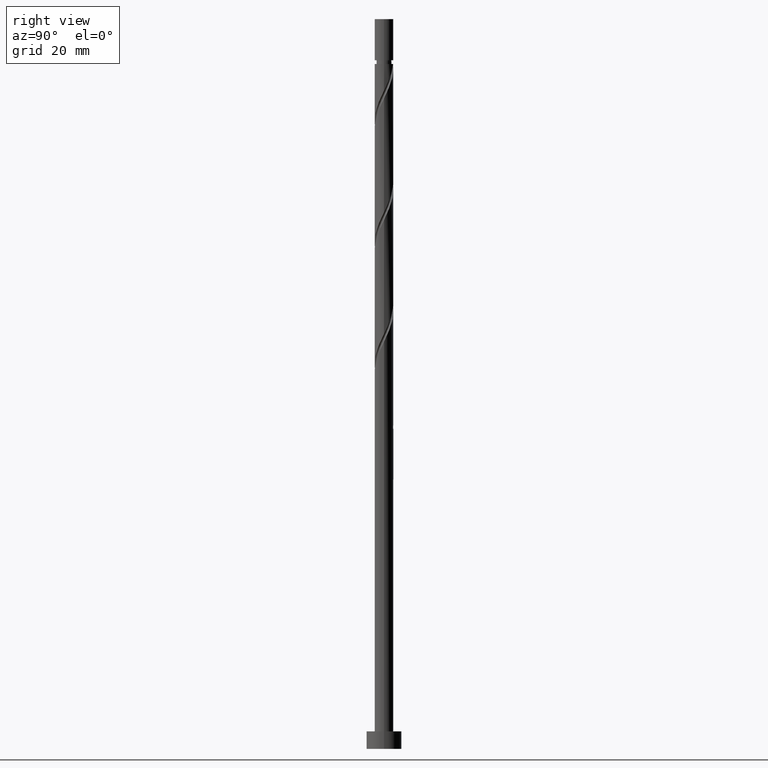
[diagram: clean part render]
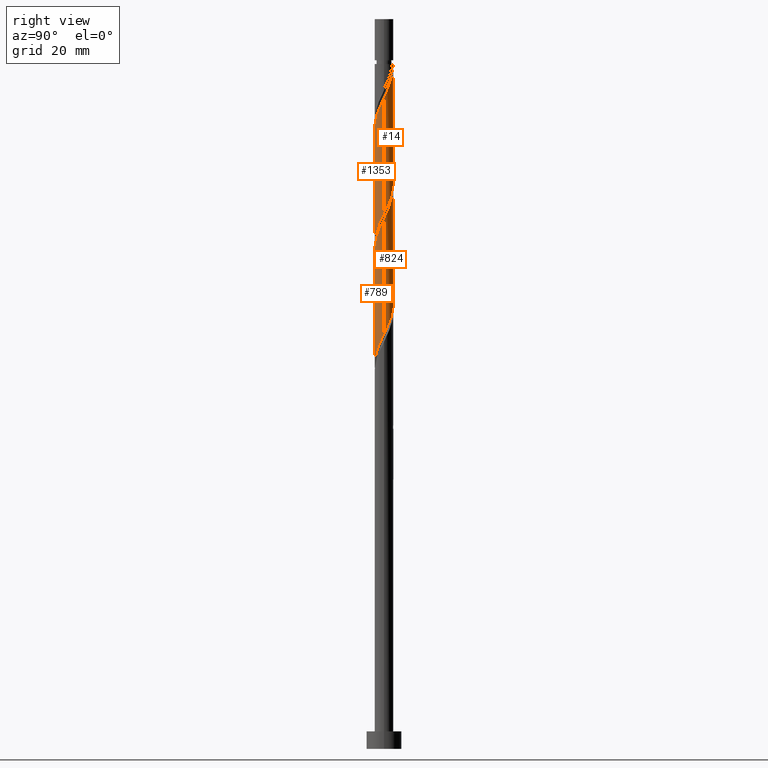
[diagram: same view with one multi-face feature highlighted, each face labeled with its STEP entity id]
A machine part, right view. The highlighted faces form ONE feature: a constant-radius fillet chain: 4 tangent blend faces with common blend radius 1.6 mm. The faces share edges in the B-rep.
Their STEP definitions:
[1] entity #789 (Cylinder):
#18 = CARTESIAN_POINT ( 'NONE',  ( -1.081390185820700900, -1.179235034253425018, 82.93328590375755027 ) ) ;
#24 = CARTESIAN_POINT ( 'NONE',  ( -0.8946177049093868572, -1.350510413607083127, 83.45411923709087887 ) ) ;
#32 = CARTESIAN_POINT ( 'NONE',  ( -0.7873512186013785774, -1.392866848829034110, 64.18328590375755027 ) ) ;
#47 = CARTESIAN_POINT ( 'NONE',  ( 0.6640595169357718097, -1.455687108539134966, 67.30828590375755027 ) ) ;
#54 = CARTESIAN_POINT ( 'NONE',  ( 1.268162666732013166, -1.007959654899765800, 68.87078590375755027 ) ) ;
#63 = ORIENTED_EDGE ( 'NONE', *, *, #1163, .F. ) ;
#73 =( BOUNDED_CURVE ( )  B_SPLINE_CURVE ( 2, ( #271, #296, #632, #1367, #1510, #54, #1252, #753, #47, #1121, #533, #646, #1025, #409, #32, #1129, #507, #1358, #889, #1385, #1376, #277, #904 ),
 .UNSPECIFIED., .F., .T. ) 
 B_SPLINE_CURVE_WITH_KNOTS ( ( 3, 2, 2, 2, 2, 2, 2, 2, 2, 2, 2, 3 ),
 ( 0.8045322023138552492, 0.8125000000000000000, 0.8249999999999999556, 0.8375000000000000222, 0.8499999999999999778, 0.8625000000000000444, 0.8750000000000000000, 0.8874999999999999556, 0.9000000000000000222, 0.9124999999999999778, 0.9250000000000000444, 0.9295322023138552492 ),
 .UNSPECIFIED. ) 
 CURVE ( )  GEOMETRIC_REPRESENTATION_ITEM ( )  RATIONAL_B_SPLINE_CURVE ( ( 0.9039174447099364018, 0.9019565955404658109, 0.9090909090909141677, 0.8978984914501302317, 0.9090909090909141677, 0.8978984914501302317, 0.9090909090909141677, 0.8978984914501302317, 0.9090909090909141677, 0.8978984914501302317, 0.9090909090909141677, 0.8978984914501302317, 0.9090909090909141677, 0.8978984914501302317, 0.9090909090909141677, 0.8978984914501302317, 0.9090909090909141677, 0.8978984914501302317, 0.9090909090909141677, 0.8978984914501302317, 0.9090909090909141677, 0.9050328050005784775, 0.9039174447099364018 ) ) 
 REPRESENTATION_ITEM ( '' )  );
#82 = EDGE_CURVE ( 'NONE', #1153, #1057, #906, .T. ) ;
#101 = AXIS2_PLACEMENT_3D ( 'NONE', #612, #1104, #383 ) ;
#148 = CARTESIAN_POINT ( 'NONE',  ( 0.3183959798741187175, -1.568000000000002281, 86.05828590375753606 ) ) ;
#187 = CARTESIAN_POINT ( 'NONE',  ( 1.600000000000002087, 1.641744754761022341E-15, 90.60181679562060708 ) ) ;
#269 = CARTESIAN_POINT ( 'NONE',  ( -1.600000000000002309, -0.1608060504414739467, 80.51945470436179164 ) ) ;
#271 = CARTESIAN_POINT ( 'NONE',  ( 1.599999999999999423, 2.031565427124383516E-15, 71.09808834522779364 ) ) ;
#277 = CARTESIAN_POINT ( 'NONE',  ( -1.599999999999999645, -0.09115797991429115676, 60.87093276776844419 ) ) ;
#292 = VERTEX_POINT ( 'NONE', #954 ) ;
#296 = CARTESIAN_POINT ( 'NONE',  ( 1.599999999999999201, -0.1608060504414754455, 70.76378376981995189 ) ) ;
#322 = CARTESIAN_POINT ( 'NONE',  ( 1.350510413607083127, -0.8946177049093871902, 88.66245257042425010 ) ) ;
#378 = FACE_OUTER_BOUND ( 'NONE', #697, .T. ) ;
#383 = DIRECTION ( 'NONE',  ( -1.000000000000000000, 0.000000000000000000, 0.000000000000000000 ) ) ;
#409 = CARTESIAN_POINT ( 'NONE',  ( -0.5667427823029919098, -1.517571030926054831, 64.70411923709089308 ) ) ;
#443 = ORIENTED_EDGE ( 'NONE', *, *, #913, .F. ) ;
#483 = DIRECTION ( 'NONE',  ( -0.000000000000000000, -0.000000000000000000, -1.000000000000000000 ) ) ;
#488 = ORIENTED_EDGE ( 'NONE', *, *, #82, .F. ) ;
#507 = CARTESIAN_POINT ( 'NONE',  ( -1.179235034253423464, -1.081390185820699124, 63.14161923709090019 ) ) ;
#533 = CARTESIAN_POINT ( 'NONE',  ( 0.1817260757584559516, -1.589646386272566492, 66.26661923709089308 ) ) ;
#549 = CARTESIAN_POINT ( 'NONE',  ( -1.599999999999999423, -2.196489557739646479E-15, 60.68142167856116487 ) ) ;
#612 = CARTESIAN_POINT ( 'NONE',  ( 0.000000000000000000, 0.000000000000000000, 125.0000000000000000 ) ) ;
#623 = CARTESIAN_POINT ( 'NONE',  ( -0.6640595169357733640, -1.455687108539137187, 83.97495257042419325 ) ) ;
#625 = CARTESIAN_POINT ( 'NONE',  ( -1.268162666732014721, -1.007959654899766910, 82.41245257042423589 ) ) ;
#632 = CARTESIAN_POINT ( 'NONE',  ( 1.568000000000000060, -0.3183959798741189950, 70.43328590375753606 ) ) ;
#646 = CARTESIAN_POINT ( 'NONE',  ( -0.07004917744524610801, -1.618428969073944179, 65.74578590375756448 ) ) ;
#656 = VECTOR ( 'NONE', #483, 1000.000000000000000 ) ;
#697 = EDGE_LOOP ( 'NONE', ( #63, #488, #1022, #443 ) ) ;
#744 = CARTESIAN_POINT ( 'NONE',  ( -0.4335013289621593713, -1.560863803471191247, 84.49578590375756448 ) ) ;
#750 = CARTESIAN_POINT ( 'NONE',  ( -1.568000000000002281, -0.3183959798741188285, 80.84995257042425010 ) ) ;
#753 = CARTESIAN_POINT ( 'NONE',  ( 0.8946177049093853029, -1.350510413607081350, 67.82911923709089308 ) ) ;
#762 = CARTESIAN_POINT ( 'NONE',  ( 0.07004917744524548351, -1.618428969073946400, 85.53745257042423589 ) ) ;
#769 = EDGE_CURVE ( 'NONE', #1153, #1084, #1324, .T. ) ;
#789 = ADVANCED_FACE ( 'NONE', ( #378 ), #982, .T. ) ;
#844 = VECTOR ( 'NONE', #1430, 1000.000000000000000 ) ;
#852 = CARTESIAN_POINT ( 'NONE',  ( -1.600000000000000089, 0.000000000000000000, 125.0000000000000000 ) ) ;
#880 = CARTESIAN_POINT ( 'NONE',  ( -0.1817260757584568953, -1.589646386272568712, 85.01661923709090729 ) ) ;
#885 = CARTESIAN_POINT ( 'NONE',  ( -1.600000000000001865, -1.814165436767887467E-15, 80.18515012895396410 ) ) ;
#889 = CARTESIAN_POINT ( 'NONE',  ( -1.455687108539134966, -0.6640595169357718097, 62.09995257042422878 ) ) ;
#904 = CARTESIAN_POINT ( 'NONE',  ( -1.599999999999999423, -2.196489557739646479E-15, 60.68142167856116487 ) ) ;
#906 =( BOUNDED_CURVE ( )  B_SPLINE_CURVE ( 2, ( #885, #269, #750, #1364, #1240, #625, #18, #24, #623, #744, #880, #762, #148, #1007, #1494, #1359, #1297, #322, #1035, #928, #1520, #1386, #1043 ),
 .UNSPECIFIED., .F., .T. ) 
 B_SPLINE_CURVE_WITH_KNOTS ( ( 3, 2, 2, 2, 2, 2, 2, 2, 2, 2, 2, 3 ),
 ( 0.3045322023138551937, 0.3125000000000000000, 0.3249999999999999556, 0.3375000000000000222, 0.3499999999999999778, 0.3625000000000000444, 0.3750000000000000000, 0.3874999999999999556, 0.4000000000000000222, 0.4124999999999999778, 0.4250000000000000444, 0.4295322023138550827 ),
 .UNSPECIFIED. ) 
 CURVE ( )  GEOMETRIC_REPRESENTATION_ITEM ( )  RATIONAL_B_SPLINE_CURVE ( ( 0.9039174447099423970, 0.9019565955404716950, 0.9090909090909201629, 0.8978984914501362269, 0.9090909090909201629, 0.8978984914501362269, 0.9090909090909201629, 0.8978984914501362269, 0.9090909090909201629, 0.8978984914501362269, 0.9090909090909201629, 0.8978984914501362269, 0.9090909090909201629, 0.8978984914501362269, 0.9090909090909201629, 0.8978984914501362269, 0.9090909090909201629, 0.8978984914501362269, 0.9090909090909201629, 0.8978984914501362269, 0.9090909090909201629, 0.9050328050005846947, 0.9039174447099425080 ) ) 
 REPRESENTATION_ITEM ( '' )  );
#913 = EDGE_CURVE ( 'NONE', #292, #1084, #73, .T. ) ;
#928 = CARTESIAN_POINT ( 'NONE',  ( 1.560863803471191247, -0.4335013289621594268, 89.70411923709087887 ) ) ;
#954 = CARTESIAN_POINT ( 'NONE',  ( 1.599999999999999201, 2.031565427124383121E-15, 71.09808834522780785 ) ) ;
#982 = CYLINDRICAL_SURFACE ( 'NONE', #101, 1.600000000000000089 ) ;
#1007 = CARTESIAN_POINT ( 'NONE',  ( 0.5667427823029920209, -1.517571030926057496, 86.57911923709089308 ) ) ;
#1022 = ORIENTED_EDGE ( 'NONE', *, *, #769, .T. ) ;
#1025 = CARTESIAN_POINT ( 'NONE',  ( -0.3183959798741189395, -1.568000000000000060, 65.22495257042422168 ) ) ;
#1035 = CARTESIAN_POINT ( 'NONE',  ( 1.455687108539137187, -0.6640595169357733640, 89.18328590375755027 ) ) ;
#1042 = CARTESIAN_POINT ( 'NONE',  ( 1.600000000000000089, 1.959434878635764737E-16, 125.0000000000000000 ) ) ;
#1043 = CARTESIAN_POINT ( 'NONE',  ( 1.600000000000002087, 1.641744754761022144E-15, 90.60181679562060708 ) ) ;
#1057 = VERTEX_POINT ( 'NONE', #187 ) ;
#1084 = VERTEX_POINT ( 'NONE', #549 ) ;
#1104 = DIRECTION ( 'NONE',  ( -0.000000000000000000, -0.000000000000000000, -1.000000000000000000 ) ) ;
#1121 = CARTESIAN_POINT ( 'NONE',  ( 0.4335013289621581500, -1.560863803471189248, 66.78745257042423589 ) ) ;
#1129 = CARTESIAN_POINT ( 'NONE',  ( -1.007959654899765578, -1.268162666732013166, 63.66245257042424299 ) ) ;
#1153 = VERTEX_POINT ( 'NONE', #1555 ) ;
#1163 = EDGE_CURVE ( 'NONE', #1057, #292, #1538, .T. ) ;
#1240 = CARTESIAN_POINT ( 'NONE',  ( -1.392866848829036330, -0.7873512186013793546, 81.89161923709090729 ) ) ;
#1252 = CARTESIAN_POINT ( 'NONE',  ( 1.081390185820699124, -1.179235034253423464, 68.34995257042422168 ) ) ;
#1297 = CARTESIAN_POINT ( 'NONE',  ( 1.179235034253425018, -1.081390185820700900, 88.14161923709087887 ) ) ;
#1324 = LINE ( 'NONE', #852, #656 ) ;
#1358 = CARTESIAN_POINT ( 'NONE',  ( -1.350510413607081350, -0.8946177049093855249, 62.62078590375756448 ) ) ;
#1359 = CARTESIAN_POINT ( 'NONE',  ( 1.007959654899766688, -1.268162666732014721, 87.62078590375756448 ) ) ;
#1364 = CARTESIAN_POINT ( 'NONE',  ( -1.517571030926057274, -0.5667427823029920209, 81.37078590375753606 ) ) ;
#1367 = CARTESIAN_POINT ( 'NONE',  ( 1.517571030926054831, -0.5667427823029919098, 69.91245257042423589 ) ) ;
#1376 = CARTESIAN_POINT ( 'NONE',  ( -1.589646386272566492, -0.1817260757584560626, 61.05828590375755738 ) ) ;
#1385 = CARTESIAN_POINT ( 'NONE',  ( -1.560863803471189248, -0.4335013289621583721, 61.57911923709090729 ) ) ;
#1386 = CARTESIAN_POINT ( 'NONE',  ( 1.600000000000001421, -0.09115797991429527847, 90.41230570641333486 ) ) ;
#1430 = DIRECTION ( 'NONE',  ( -0.000000000000000000, -0.000000000000000000, -1.000000000000000000 ) ) ;
#1494 = CARTESIAN_POINT ( 'NONE',  ( 0.7873512186013793546, -1.392866848829036330, 87.09995257042423589 ) ) ;
#1510 = CARTESIAN_POINT ( 'NONE',  ( 1.392866848829034110, -0.7873512186013785774, 69.39161923709087887 ) ) ;
#1520 = CARTESIAN_POINT ( 'NONE',  ( 1.589646386272568712, -0.1817260757584568953, 90.22495257042422168 ) ) ;
#1538 = LINE ( 'NONE', #1042, #844 ) ;
#1555 = CARTESIAN_POINT ( 'NONE',  ( -1.600000000000002087, -1.814165436767887467E-15, 80.18515012895396410 ) ) ;
[2] entity #824 (Cylinder):
#9 = ORIENTED_EDGE ( 'NONE', *, *, #134, .F. ) ;
#17 = FACE_OUTER_BOUND ( 'NONE', #541, .T. ) ;
#70 = CARTESIAN_POINT ( 'NONE',  ( -1.517571030926055276, 0.5667427823029917988, 80.32911923709092150 ) ) ;
#76 = VERTEX_POINT ( 'NONE', #385 ) ;
#104 = CARTESIAN_POINT ( 'NONE',  ( 0.5667427823029919098, 1.517571030926054831, 75.12078590375755027 ) ) ;
#112 = CARTESIAN_POINT ( 'NONE',  ( -0.07004917744524535861, 1.618428969073946400, 95.95411923709087887 ) ) ;
#120 = CARTESIAN_POINT ( 'NONE',  ( -1.600000000000002087, -3.231013649780824612E-15, 101.0184834622873069 ) ) ;
#122 = CARTESIAN_POINT ( 'NONE',  ( -1.081390185820699124, 1.179235034253423464, 78.76661923709087887 ) ) ;
#128 = CARTESIAN_POINT ( 'NONE',  ( 1.268162666732015387, 1.007959654899766688, 92.82911923709090729 ) ) ;
#131 = VERTEX_POINT ( 'NONE', #1393 ) ;
#134 = EDGE_CURVE ( 'NONE', #131, #292, #232, .T. ) ;
#173 = VECTOR ( 'NONE', #1559, 1000.000000000000000 ) ;
#187 = CARTESIAN_POINT ( 'NONE',  ( 1.600000000000002087, 1.641744754761022341E-15, 90.60181679562060708 ) ) ;
#232 =( BOUNDED_CURVE ( )  B_SPLINE_CURVE ( 2, ( #1165, #795, #672, #70, #550, #1530, #122, #1199, #600, #1562, #696, #1457, #470, #104, #352, #839, #1330, #1182, #1066, #715, #1556, #1460, #1345 ),
 .UNSPECIFIED., .F., .T. ) 
 B_SPLINE_CURVE_WITH_KNOTS ( ( 3, 2, 2, 2, 2, 2, 2, 2, 2, 2, 2, 3 ),
 ( 0.6795322023138553602, 0.6875000000000000000, 0.6999999999999999556, 0.7125000000000000222, 0.7249999999999999778, 0.7375000000000000444, 0.7500000000000000000, 0.7624999999999999556, 0.7750000000000000222, 0.7874999999999999778, 0.8000000000000000444, 0.8045322023138552492 ),
 .UNSPECIFIED. ) 
 CURVE ( )  GEOMETRIC_REPRESENTATION_ITEM ( )  RATIONAL_B_SPLINE_CURVE ( ( 0.9039174447099362908, 0.9019565955404658109, 0.9090909090909141677, 0.8978984914501302317, 0.9090909090909141677, 0.8978984914501302317, 0.9090909090909141677, 0.8978984914501302317, 0.9090909090909141677, 0.8978984914501302317, 0.9090909090909141677, 0.8978984914501302317, 0.9090909090909141677, 0.8978984914501302317, 0.9090909090909141677, 0.8978984914501302317, 0.9090909090909141677, 0.8978984914501302317, 0.9090909090909141677, 0.8978984914501302317, 0.9090909090909141677, 0.9050328050005784775, 0.9039174447099364018 ) ) 
 REPRESENTATION_ITEM ( '' )  );
#258 = AXIS2_PLACEMENT_3D ( 'NONE', #1347, #1352, #875 ) ;
#292 = VERTEX_POINT ( 'NONE', #954 ) ;
#345 = LINE ( 'NONE', #1316, #173 ) ;
#352 = CARTESIAN_POINT ( 'NONE',  ( 0.7873512186013789105, 1.392866848829033888, 74.59995257042423589 ) ) ;
#385 = CARTESIAN_POINT ( 'NONE',  ( -1.600000000000002087, -3.231013649780824612E-15, 101.0184834622873211 ) ) ;
#415 = ORIENTED_EDGE ( 'NONE', *, *, #1163, .T. ) ;
#470 = CARTESIAN_POINT ( 'NONE',  ( 0.3183959798741191061, 1.568000000000000060, 75.64161923709087887 ) ) ;
#480 = CARTESIAN_POINT ( 'NONE',  ( 1.600000000000002087, 1.641744754761022144E-15, 90.60181679562060708 ) ) ;
#503 = CARTESIAN_POINT ( 'NONE',  ( -0.7873512186013793546, 1.392866848829036108, 97.51661923709089308 ) ) ;
#541 = EDGE_LOOP ( 'NONE', ( #840, #415, #9, #723 ) ) ;
#550 = CARTESIAN_POINT ( 'NONE',  ( -1.392866848829034110, 0.7873512186013785774, 79.80828590375757869 ) ) ;
#591 = CARTESIAN_POINT ( 'NONE',  ( -1.560863803471191247, 0.4335013289621593713, 100.1207859037575503 ) ) ;
#594 = EDGE_CURVE ( 'NONE', #76, #131, #345, .T. ) ;
#600 = CARTESIAN_POINT ( 'NONE',  ( -0.6640595169357719207, 1.455687108539135188, 77.72495257042422168 ) ) ;
#609 = CARTESIAN_POINT ( 'NONE',  ( 1.568000000000002281, 0.3183959798741187175, 91.26661923709086466 ) ) ;
#635 = CARTESIAN_POINT ( 'NONE',  ( 1.081390185820700900, 1.179235034253424796, 93.34995257042422168 ) ) ;
#672 = CARTESIAN_POINT ( 'NONE',  ( -1.568000000000000060, 0.3183959798741188285, 80.84995257042423589 ) ) ;
#696 = CARTESIAN_POINT ( 'NONE',  ( -0.1817260757584562014, 1.589646386272566492, 76.68328590375756448 ) ) ;
#715 = CARTESIAN_POINT ( 'NONE',  ( 1.560863803471189248, 0.4335013289621580945, 71.99578590375757869 ) ) ;
#723 = ORIENTED_EDGE ( 'NONE', *, *, #594, .F. ) ;
#731 = CARTESIAN_POINT ( 'NONE',  ( -1.179235034253425241, 1.081390185820700678, 98.55828590375755027 ) ) ;
#755 = CARTESIAN_POINT ( 'NONE',  ( -1.007959654899766910, 1.268162666732014721, 98.03745257042422168 ) ) ;
#795 = CARTESIAN_POINT ( 'NONE',  ( -1.599999999999999201, 0.1608060504414774716, 81.18045043648665171 ) ) ;
#824 = ADVANCED_FACE ( 'NONE', ( #17 ), #1114, .T. ) ;
#839 = CARTESIAN_POINT ( 'NONE',  ( 1.007959654899765800, 1.268162666732013166, 74.07911923709092150 ) ) ;
#840 = ORIENTED_EDGE ( 'NONE', *, *, #1471, .F. ) ;
#844 = VECTOR ( 'NONE', #1430, 1000.000000000000000 ) ;
#875 = DIRECTION ( 'NONE',  ( -1.000000000000000000, 0.000000000000000000, 0.000000000000000000 ) ) ;
#891 = CARTESIAN_POINT ( 'NONE',  ( 0.6640595169357734751, 1.455687108539137187, 94.39161923709086466 ) ) ;
#954 = CARTESIAN_POINT ( 'NONE',  ( 1.599999999999999201, 2.031565427124383121E-15, 71.09808834522780785 ) ) ;
#971 = CARTESIAN_POINT ( 'NONE',  ( 0.8946177049093871902, 1.350510413607082683, 93.87078590375752185 ) ) ;
#979 = CARTESIAN_POINT ( 'NONE',  ( 0.4335013289621595378, 1.560863803471191247, 94.91245257042423589 ) ) ;
#998 = CARTESIAN_POINT ( 'NONE',  ( -1.455687108539137187, 0.6640595169357730310, 99.59995257042419325 ) ) ;
#1003 = CARTESIAN_POINT ( 'NONE',  ( 0.1817260757584571729, 1.589646386272568934, 95.43328590375756448 ) ) ;
#1042 = CARTESIAN_POINT ( 'NONE',  ( 1.600000000000000089, 1.959434878635764737E-16, 125.0000000000000000 ) ) ;
#1057 = VERTEX_POINT ( 'NONE', #187 ) ;
#1066 = CARTESIAN_POINT ( 'NONE',  ( 1.455687108539135188, 0.6640595169357715877, 72.51661923709089308 ) ) ;
#1075 = CARTESIAN_POINT ( 'NONE',  ( 1.517571030926057496, 0.5667427823029920209, 91.78745257042419325 ) ) ;
#1099 =( BOUNDED_CURVE ( )  B_SPLINE_CURVE ( 2, ( #480, #1209, #609, #1075, #1490, #128, #635, #971, #891, #979, #1003, #112, #1569, #1362, #503, #755, #731, #1222, #998, #591, #1215, #1481, #120 ),
 .UNSPECIFIED., .F., .T. ) 
 B_SPLINE_CURVE_WITH_KNOTS ( ( 3, 2, 2, 2, 2, 2, 2, 2, 2, 2, 2, 3 ),
 ( 0.4295322023138550827, 0.4375000000000000000, 0.4499999999999999556, 0.4625000000000000222, 0.4749999999999999778, 0.4875000000000000444, 0.5000000000000000000, 0.5124999999999999556, 0.5250000000000000222, 0.5374999999999999778, 0.5500000000000000444, 0.5545322023138555823 ),
 .UNSPECIFIED. ) 
 CURVE ( )  GEOMETRIC_REPRESENTATION_ITEM ( )  RATIONAL_B_SPLINE_CURVE ( ( 0.9039174447099425080, 0.9019565955404715840, 0.9090909090909201629, 0.8978984914501362269, 0.9090909090909201629, 0.8978984914501362269, 0.9090909090909201629, 0.8978984914501362269, 0.9090909090909201629, 0.8978984914501362269, 0.9090909090909201629, 0.8978984914501362269, 0.9090909090909201629, 0.8978984914501362269, 0.9090909090909201629, 0.8978984914501362269, 0.9090909090909201629, 0.8978984914501362269, 0.9090909090909201629, 0.8978984914501362269, 0.9090909090909201629, 0.9050328050005842506, 0.9039174447099421750 ) ) 
 REPRESENTATION_ITEM ( '' )  );
#1114 = CYLINDRICAL_SURFACE ( 'NONE', #258, 1.600000000000000089 ) ;
#1163 = EDGE_CURVE ( 'NONE', #1057, #292, #1538, .T. ) ;
#1165 = CARTESIAN_POINT ( 'NONE',  ( -1.599999999999999423, 2.286448174438881504E-15, 81.51475501189449346 ) ) ;
#1182 = CARTESIAN_POINT ( 'NONE',  ( 1.350510413607081350, 0.8946177049093851918, 73.03745257042423589 ) ) ;
#1199 = CARTESIAN_POINT ( 'NONE',  ( -0.8946177049093855249, 1.350510413607081350, 78.24578590375755027 ) ) ;
#1209 = CARTESIAN_POINT ( 'NONE',  ( 1.600000000000002753, 0.1608060504414715874, 90.93612137102843462 ) ) ;
#1215 = CARTESIAN_POINT ( 'NONE',  ( -1.589646386272568712, 0.1817260757584568676, 100.6416192370908931 ) ) ;
#1222 = CARTESIAN_POINT ( 'NONE',  ( -1.350510413607083127, 0.8946177049093868572, 99.07911923709087887 ) ) ;
#1316 = CARTESIAN_POINT ( 'NONE',  ( -1.600000000000000089, 0.000000000000000000, 125.0000000000000000 ) ) ;
#1330 = CARTESIAN_POINT ( 'NONE',  ( 1.179235034253423908, 1.081390185820699124, 73.55828590375753606 ) ) ;
#1345 = CARTESIAN_POINT ( 'NONE',  ( 1.599999999999999423, 2.031565427124383516E-15, 71.09808834522779364 ) ) ;
#1347 = CARTESIAN_POINT ( 'NONE',  ( 0.000000000000000000, 0.000000000000000000, 125.0000000000000000 ) ) ;
#1352 = DIRECTION ( 'NONE',  ( -0.000000000000000000, -0.000000000000000000, -1.000000000000000000 ) ) ;
#1362 = CARTESIAN_POINT ( 'NONE',  ( -0.5667427823029921319, 1.517571030926057274, 96.99578590375753606 ) ) ;
#1393 = CARTESIAN_POINT ( 'NONE',  ( -1.599999999999999423, 2.286448174438881504E-15, 81.51475501189449346 ) ) ;
#1430 = DIRECTION ( 'NONE',  ( -0.000000000000000000, -0.000000000000000000, -1.000000000000000000 ) ) ;
#1457 = CARTESIAN_POINT ( 'NONE',  ( 0.07004917744524592760, 1.618428969073944623, 76.16245257042420747 ) ) ;
#1460 = CARTESIAN_POINT ( 'NONE',  ( 1.599999999999999645, 0.09115797991429103186, 71.28759943443510849 ) ) ;
#1471 = EDGE_CURVE ( 'NONE', #1057, #76, #1099, .T. ) ;
#1481 = CARTESIAN_POINT ( 'NONE',  ( -1.600000000000002531, 0.09115797991428509217, 100.8289723730800347 ) ) ;
#1490 = CARTESIAN_POINT ( 'NONE',  ( 1.392866848829036330, 0.7873512186013793546, 92.30828590375755027 ) ) ;
#1530 = CARTESIAN_POINT ( 'NONE',  ( -1.268162666732013166, 1.007959654899765578, 79.28745257042423589 ) ) ;
#1538 = LINE ( 'NONE', #1042, #844 ) ;
#1556 = CARTESIAN_POINT ( 'NONE',  ( 1.589646386272566492, 0.1817260757584559516, 71.47495257042423589 ) ) ;
#1559 = DIRECTION ( 'NONE',  ( -0.000000000000000000, -0.000000000000000000, -1.000000000000000000 ) ) ;
#1562 = CARTESIAN_POINT ( 'NONE',  ( -0.4335013289621583721, 1.560863803471189248, 77.20411923709090729 ) ) ;
#1569 = CARTESIAN_POINT ( 'NONE',  ( -0.3183959798741186065, 1.568000000000002281, 96.47495257042425010 ) ) ;
[3] entity #1353 (Cylinder):
#5 = CARTESIAN_POINT ( 'NONE',  ( 0.1817260757584559516, -1.589646386272566492, 87.09995257042423589 ) ) ;
#23 = CARTESIAN_POINT ( 'NONE',  ( -1.392866848829036330, -0.7873512186013793546, 102.7249525704242075 ) ) ;
#26 = AXIS2_PLACEMENT_3D ( 'NONE', #695, #688, #336 ) ;
#71 = VERTEX_POINT ( 'NONE', #1234 ) ;
#76 = VERTEX_POINT ( 'NONE', #385 ) ;
#94 = CARTESIAN_POINT ( 'NONE',  ( 1.179235034253425018, -1.081390185820700900, 108.9749525704242217 ) ) ;
#125 = CARTESIAN_POINT ( 'NONE',  ( -1.560863803471189248, -0.4335013289621583721, 82.41245257042422168 ) ) ;
#131 = VERTEX_POINT ( 'NONE', #1393 ) ;
#133 = CARTESIAN_POINT ( 'NONE',  ( -1.350510413607081350, -0.8946177049093855249, 83.45411923709087887 ) ) ;
#143 = CARTESIAN_POINT ( 'NONE',  ( -1.007959654899765578, -1.268162666732013166, 84.49578590375757869 ) ) ;
#164 = CARTESIAN_POINT ( 'NONE',  ( -0.1817260757584568953, -1.589646386272568712, 105.8499525704241933 ) ) ;
#171 = CARTESIAN_POINT ( 'NONE',  ( 0.5667427823029920209, -1.517571030926057496, 107.4124525704242359 ) ) ;
#173 = VECTOR ( 'NONE', #1559, 1000.000000000000000 ) ;
#194 = VERTEX_POINT ( 'NONE', #1187 ) ;
#197 = CARTESIAN_POINT ( 'NONE',  ( 1.600000000000002087, -0.09115797991429196168, 111.2456390397466777 ) ) ;
#237 = EDGE_CURVE ( 'NONE', #71, #194, #800, .T. ) ;
#255 = CARTESIAN_POINT ( 'NONE',  ( -0.07004917744524610801, -1.618428969073944179, 86.57911923709090729 ) ) ;
#286 = CARTESIAN_POINT ( 'NONE',  ( -1.568000000000002281, -0.3183959798741188285, 101.6832859037575503 ) ) ;
#336 = DIRECTION ( 'NONE',  ( -1.000000000000000000, 0.000000000000000000, 0.000000000000000000 ) ) ;
#345 = LINE ( 'NONE', #1316, #173 ) ;
#355 = CARTESIAN_POINT ( 'NONE',  ( 1.600000000000000089, -0.1608060504414710323, 91.59711710315330890 ) ) ;
#373 = CARTESIAN_POINT ( 'NONE',  ( 1.081390185820699124, -1.179235034253423464, 89.18328590375755027 ) ) ;
#385 = CARTESIAN_POINT ( 'NONE',  ( -1.600000000000002087, -3.231013649780824612E-15, 101.0184834622873211 ) ) ;
#427 = CARTESIAN_POINT ( 'NONE',  ( 1.007959654899766688, -1.268162666732014721, 108.4541192370908931 ) ) ;
#496 = CARTESIAN_POINT ( 'NONE',  ( 1.568000000000000060, -0.3183959798741189950, 91.26661923709089308 ) ) ;
#501 = CARTESIAN_POINT ( 'NONE',  ( -1.268162666732014721, -1.007959654899766910, 103.2457859037575361 ) ) ;
#558 = DIRECTION ( 'NONE',  ( -0.000000000000000000, -0.000000000000000000, -1.000000000000000000 ) ) ;
#560 = CARTESIAN_POINT ( 'NONE',  ( 1.350510413607083127, -0.8946177049093871902, 109.4957859037575645 ) ) ;
#594 = EDGE_CURVE ( 'NONE', #76, #131, #345, .T. ) ;
#595 = CARTESIAN_POINT ( 'NONE',  ( 0.4335013289621581500, -1.560863803471189248, 87.62078590375756448 ) ) ;
#622 = CARTESIAN_POINT ( 'NONE',  ( -1.599999999999999645, -0.09115797991428892244, 81.70426610110176568 ) ) ;
#657 = CARTESIAN_POINT ( 'NONE',  ( -0.8946177049093868572, -1.350510413607083127, 104.2874525704242217 ) ) ;
#688 = DIRECTION ( 'NONE',  ( -0.000000000000000000, -0.000000000000000000, -1.000000000000000000 ) ) ;
#695 = CARTESIAN_POINT ( 'NONE',  ( 0.000000000000000000, 0.000000000000000000, 125.0000000000000000 ) ) ;
#707 = ORIENTED_EDGE ( 'NONE', *, *, #594, .T. ) ;
#725 = CARTESIAN_POINT ( 'NONE',  ( 1.392866848829034110, -0.7873512186013785774, 90.22495257042420747 ) ) ;
#735 = CARTESIAN_POINT ( 'NONE',  ( -1.179235034253423464, -1.081390185820699124, 83.97495257042420747 ) ) ;
#748 = CARTESIAN_POINT ( 'NONE',  ( 0.6640595169357718097, -1.455687108539134966, 88.14161923709093571 ) ) ;
#758 = EDGE_CURVE ( 'NONE', #194, #131, #1482, .T. ) ;
#771 = CARTESIAN_POINT ( 'NONE',  ( -1.517571030926057274, -0.5667427823029920209, 102.2041192370908931 ) ) ;
#800 = LINE ( 'NONE', #934, #1031 ) ;
#803 = ORIENTED_EDGE ( 'NONE', *, *, #758, .F. ) ;
#842 = CARTESIAN_POINT ( 'NONE',  ( -0.5667427823029919098, -1.517571030926054831, 85.53745257042422168 ) ) ;
#879 = CARTESIAN_POINT ( 'NONE',  ( -1.600000000000000977, -0.1608060504414817460, 101.3527880376951487 ) ) ;
#897 = CARTESIAN_POINT ( 'NONE',  ( -1.600000000000002087, -3.231013649780824612E-15, 101.0184834622873069 ) ) ;
#911 = ORIENTED_EDGE ( 'NONE', *, *, #237, .F. ) ;
#934 = CARTESIAN_POINT ( 'NONE',  ( 1.600000000000000089, 1.959434878635764737E-16, 125.0000000000000000 ) ) ;
#975 = CARTESIAN_POINT ( 'NONE',  ( -1.589646386272566492, -0.1817260757584560626, 81.89161923709092150 ) ) ;
#987 = CARTESIAN_POINT ( 'NONE',  ( 1.517571030926054831, -0.5667427823029919098, 90.74578590375756448 ) ) ;
#1031 = VECTOR ( 'NONE', #558, 1000.000000000000000 ) ;
#1034 = CARTESIAN_POINT ( 'NONE',  ( 1.455687108539137187, -0.6640595169357733640, 110.0166192370908789 ) ) ;
#1052 = EDGE_CURVE ( 'NONE', #76, #71, #1262, .T. ) ;
#1094 = CARTESIAN_POINT ( 'NONE',  ( -0.7873512186013785774, -1.392866848829034110, 85.01661923709087887 ) ) ;
#1109 = CARTESIAN_POINT ( 'NONE',  ( -1.455687108539134966, -0.6640595169357718097, 82.93328590375755027 ) ) ;
#1138 = CARTESIAN_POINT ( 'NONE',  ( -0.6640595169357733640, -1.455687108539137187, 104.8082859037575503 ) ) ;
#1147 = CARTESIAN_POINT ( 'NONE',  ( 0.7873512186013793546, -1.392866848829036330, 107.9332859037575645 ) ) ;
#1181 = CARTESIAN_POINT ( 'NONE',  ( 1.589646386272568712, -0.1817260757584568953, 111.0582859037575645 ) ) ;
#1187 = CARTESIAN_POINT ( 'NONE',  ( 1.599999999999999201, 2.031565427124383121E-15, 91.93142167856115066 ) ) ;
#1190 = CARTESIAN_POINT ( 'NONE',  ( 1.560863803471191247, -0.4335013289621594268, 110.5374525704242359 ) ) ;
#1219 = CARTESIAN_POINT ( 'NONE',  ( 1.268162666732013166, -1.007959654899765800, 89.70411923709092150 ) ) ;
#1226 = CARTESIAN_POINT ( 'NONE',  ( -1.599999999999999423, 2.286448174438881504E-15, 81.51475501189449346 ) ) ;
#1232 = CARTESIAN_POINT ( 'NONE',  ( -0.3183959798741189395, -1.568000000000000060, 86.05828590375756448 ) ) ;
#1234 = CARTESIAN_POINT ( 'NONE',  ( 1.600000000000001865, 8.171241016847095961E-16, 111.4351501289539499 ) ) ;
#1243 = CARTESIAN_POINT ( 'NONE',  ( -1.081390185820700900, -1.179235034253425018, 103.7666192370908931 ) ) ;
#1260 = CARTESIAN_POINT ( 'NONE',  ( -0.4335013289621593713, -1.560863803471191247, 105.3291192370908931 ) ) ;
#1262 =( BOUNDED_CURVE ( )  B_SPLINE_CURVE ( 2, ( #897, #879, #286, #771, #23, #501, #1243, #657, #1138, #1260, #164, #1504, #1267, #171, #1147, #427, #94, #560, #1034, #1190, #1181, #197, #1529 ),
 .UNSPECIFIED., .F., .T. ) 
 B_SPLINE_CURVE_WITH_KNOTS ( ( 3, 2, 2, 2, 2, 2, 2, 2, 2, 2, 2, 3 ),
 ( 0.5545322023138555823, 0.5625000000000000000, 0.5749999999999999556, 0.5875000000000000222, 0.5999999999999999778, 0.6125000000000000444, 0.6250000000000000000, 0.6374999999999999556, 0.6500000000000000222, 0.6624999999999999778, 0.6750000000000000444, 0.6795322023138552492 ),
 .UNSPECIFIED. ) 
 CURVE ( )  GEOMETRIC_REPRESENTATION_ITEM ( )  RATIONAL_B_SPLINE_CURVE ( ( 0.9039174447099421750, 0.9019565955404720281, 0.9090909090909201629, 0.8978984914501362269, 0.9090909090909201629, 0.8978984914501362269, 0.9090909090909201629, 0.8978984914501362269, 0.9090909090909201629, 0.8978984914501362269, 0.9090909090909201629, 0.8978984914501362269, 0.9090909090909201629, 0.8978984914501362269, 0.9090909090909201629, 0.8978984914501362269, 0.9090909090909201629, 0.8978984914501362269, 0.9090909090909201629, 0.8978984914501362269, 0.9090909090909201629, 0.9050328050005844727, 0.9039174447099422860 ) ) 
 REPRESENTATION_ITEM ( '' )  );
#1267 = CARTESIAN_POINT ( 'NONE',  ( 0.3183959798741187175, -1.568000000000002281, 106.8916192370909073 ) ) ;
#1280 = FACE_OUTER_BOUND ( 'NONE', #1343, .T. ) ;
#1316 = CARTESIAN_POINT ( 'NONE',  ( -1.600000000000000089, 0.000000000000000000, 125.0000000000000000 ) ) ;
#1343 = EDGE_LOOP ( 'NONE', ( #911, #1432, #707, #803 ) ) ;
#1353 = ADVANCED_FACE ( 'NONE', ( #1280 ), #1423, .T. ) ;
#1393 = CARTESIAN_POINT ( 'NONE',  ( -1.599999999999999423, 2.286448174438881504E-15, 81.51475501189449346 ) ) ;
#1423 = CYLINDRICAL_SURFACE ( 'NONE', #26, 1.600000000000000089 ) ;
#1432 = ORIENTED_EDGE ( 'NONE', *, *, #1052, .F. ) ;
#1461 = CARTESIAN_POINT ( 'NONE',  ( 1.599999999999999201, 2.031565427124383121E-15, 91.93142167856115066 ) ) ;
#1467 = CARTESIAN_POINT ( 'NONE',  ( 0.8946177049093853029, -1.350510413607081350, 88.66245257042425010 ) ) ;
#1482 =( BOUNDED_CURVE ( )  B_SPLINE_CURVE ( 2, ( #1461, #355, #496, #987, #725, #1219, #373, #1467, #748, #595, #5, #255, #1232, #842, #1094, #143, #735, #133, #1109, #125, #975, #622, #1226 ),
 .UNSPECIFIED., .F., .T. ) 
 B_SPLINE_CURVE_WITH_KNOTS ( ( 3, 2, 2, 2, 2, 2, 2, 2, 2, 2, 2, 3 ),
 ( 0.5545322023138550271, 0.5625000000000000000, 0.5749999999999999556, 0.5875000000000000222, 0.5999999999999999778, 0.6125000000000000444, 0.6250000000000000000, 0.6374999999999999556, 0.6500000000000000222, 0.6624999999999999778, 0.6750000000000000444, 0.6795322023138553602 ),
 .UNSPECIFIED. ) 
 CURVE ( )  GEOMETRIC_REPRESENTATION_ITEM ( )  RATIONAL_B_SPLINE_CURVE ( ( 0.9039174447099365128, 0.9019565955404655888, 0.9090909090909141677, 0.8978984914501302317, 0.9090909090909141677, 0.8978984914501302317, 0.9090909090909141677, 0.8978984914501302317, 0.9090909090909141677, 0.8978984914501302317, 0.9090909090909141677, 0.8978984914501302317, 0.9090909090909141677, 0.8978984914501302317, 0.9090909090909141677, 0.8978984914501302317, 0.9090909090909141677, 0.8978984914501302317, 0.9090909090909141677, 0.8978984914501302317, 0.9090909090909141677, 0.9050328050005784775, 0.9039174447099362908 ) ) 
 REPRESENTATION_ITEM ( '' )  );
#1504 = CARTESIAN_POINT ( 'NONE',  ( 0.07004917744524548351, -1.618428969073946400, 106.3707859037575503 ) ) ;
#1529 = CARTESIAN_POINT ( 'NONE',  ( 1.600000000000001865, 8.171241016847094975E-16, 111.4351501289539499 ) ) ;
#1559 = DIRECTION ( 'NONE',  ( -0.000000000000000000, -0.000000000000000000, -1.000000000000000000 ) ) ;
[4] entity #14 (Cylinder):
#6 = CARTESIAN_POINT ( 'NONE',  ( -0.3183959798741186065, 1.568000000000002059, 117.3082859037575645 ) ) ;
#12 = CARTESIAN_POINT ( 'NONE',  ( 1.589646386272566492, 0.1817260757584559516, 92.30828590375756448 ) ) ;
#14 = ADVANCED_FACE ( 'NONE', ( #1525 ), #418, .T. ) ;
#40 = CARTESIAN_POINT ( 'NONE',  ( 0.4335013289621595378, 1.560863803471191247, 115.7457859037575645 ) ) ;
#49 = CARTESIAN_POINT ( 'NONE',  ( 0.7873512186013789105, 1.392866848829033888, 95.43328590375756448 ) ) ;
#71 = VERTEX_POINT ( 'NONE', #1234 ) ;
#92 = AXIS2_PLACEMENT_3D ( 'NONE', #520, #1229, #1106 ) ;
#147 = CARTESIAN_POINT ( 'NONE',  ( 0.6640595169357734751, 1.455687108539137187, 115.2249525704242075 ) ) ;
#157 = CARTESIAN_POINT ( 'NONE',  ( 1.517571030926057496, 0.5667427823029920209, 112.6207859037575645 ) ) ;
#159 = CARTESIAN_POINT ( 'NONE',  ( -1.268162666732013166, 1.007959654899765578, 100.1207859037575503 ) ) ;
#166 = CARTESIAN_POINT ( 'NONE',  ( -1.517571030926055276, 0.5667427823029917988, 101.1624525704242501 ) ) ;
#189 = VERTEX_POINT ( 'NONE', #6 ) ;
#194 = VERTEX_POINT ( 'NONE', #1187 ) ;
#237 = EDGE_CURVE ( 'NONE', #71, #194, #800, .T. ) ;
#279 = AXIS2_PLACEMENT_3D ( 'NONE', #802, #830, #1050 ) ;
#288 = CARTESIAN_POINT ( 'NONE',  ( 1.007959654899765800, 1.268162666732013166, 94.91245257042425010 ) ) ;
#319 = CARTESIAN_POINT ( 'NONE',  ( -1.568000000000000060, 0.3183959798741188285, 101.6832859037575361 ) ) ;
#353 = ORIENTED_EDGE ( 'NONE', *, *, #1071, .T. ) ;
#365 = CARTESIAN_POINT ( 'NONE',  ( 1.599999999999999201, 0.09115797991429548663, 92.12093276776845130 ) ) ;
#368 = EDGE_CURVE ( 'NONE', #652, #194, #1150, .T. ) ;
#387 = CARTESIAN_POINT ( 'NONE',  ( -0.3183959798741186065, 1.568000000000001837, 117.3082859037575645 ) ) ;
#418 = CYLINDRICAL_SURFACE ( 'NONE', #92, 1.600000000000000089 ) ;
#478 = VECTOR ( 'NONE', #1434, 1000.000000000000000 ) ;
#516 = CARTESIAN_POINT ( 'NONE',  ( -0.6640595169357719207, 1.455687108539135188, 98.55828590375755027 ) ) ;
#520 = CARTESIAN_POINT ( 'NONE',  ( 0.000000000000000000, 0.000000000000000000, 125.0000000000000000 ) ) ;
#525 = CARTESIAN_POINT ( 'NONE',  ( 1.568000000000002281, 0.3183959798741187175, 112.0999525704241933 ) ) ;
#529 = CARTESIAN_POINT ( 'NONE',  ( 1.350510413607081350, 0.8946177049093851918, 93.87078590375756448 ) ) ;
#558 = DIRECTION ( 'NONE',  ( -0.000000000000000000, -0.000000000000000000, -1.000000000000000000 ) ) ;
#577 = LINE ( 'NONE', #957, #478 ) ;
#638 = CARTESIAN_POINT ( 'NONE',  ( 1.392866848829036330, 0.7873512186013793546, 113.1416192370908789 ) ) ;
#641 = CARTESIAN_POINT ( 'NONE',  ( -1.081390185820699124, 1.179235034253423464, 99.59995257042423589 ) ) ;
#652 = VERTEX_POINT ( 'NONE', #1193 ) ;
#660 = EDGE_CURVE ( 'NONE', #1321, #652, #577, .T. ) ;
#778 = CARTESIAN_POINT ( 'NONE',  ( -0.07004917744524308265, 1.618428969073945956, 116.7874525704242075 ) ) ;
#782 = ORIENTED_EDGE ( 'NONE', *, *, #660, .F. ) ;
#785 = CARTESIAN_POINT ( 'NONE',  ( 0.8946177049093871902, 1.350510413607082683, 114.7041192370908647 ) ) ;
#786 = EDGE_LOOP ( 'NONE', ( #964, #1281, #1291, #782, #353 ) ) ;
#800 = LINE ( 'NONE', #934, #1031 ) ;
#802 = CARTESIAN_POINT ( 'NONE',  ( 0.000000000000000000, 0.000000000000000000, 117.3082859037575645 ) ) ;
#830 = DIRECTION ( 'NONE',  ( -0.000000000000000000, -0.000000000000000000, -1.000000000000000000 ) ) ;
#853 = CARTESIAN_POINT ( 'NONE',  ( 1.599999999999999201, 2.031565427124383121E-15, 91.93142167856115066 ) ) ;
#899 = CARTESIAN_POINT ( 'NONE',  ( 0.3183959798741191061, 1.568000000000000060, 96.47495257042420747 ) ) ;
#910 = CARTESIAN_POINT ( 'NONE',  ( 1.600000000000001865, 0.1608060504414748904, 111.7694547043617774 ) ) ;
#925 = CARTESIAN_POINT ( 'NONE',  ( -1.599999999999999645, 1.454330969970960778E-15, 102.3480883452278221 ) ) ;
#934 = CARTESIAN_POINT ( 'NONE',  ( 1.600000000000000089, 1.959434878635764737E-16, 125.0000000000000000 ) ) ;
#957 = CARTESIAN_POINT ( 'NONE',  ( -1.600000000000000089, 0.000000000000000000, 125.0000000000000000 ) ) ;
#964 = ORIENTED_EDGE ( 'NONE', *, *, #991, .F. ) ;
#991 = EDGE_CURVE ( 'NONE', #71, #189, #1325, .T. ) ;
#1006 = CARTESIAN_POINT ( 'NONE',  ( 1.268162666732015387, 1.007959654899766688, 113.6624525704242217 ) ) ;
#1009 = CARTESIAN_POINT ( 'NONE',  ( -0.4335013289621583721, 1.560863803471189248, 98.03745257042422168 ) ) ;
#1016 = CARTESIAN_POINT ( 'NONE',  ( 1.560863803471189248, 0.4335013289621580945, 92.82911923709090729 ) ) ;
#1017 = CARTESIAN_POINT ( 'NONE',  ( 1.081390185820700900, 1.179235034253424796, 114.1832859037575645 ) ) ;
#1019 = CARTESIAN_POINT ( 'NONE',  ( -0.1817260757584562014, 1.589646386272566492, 97.51661923709090729 ) ) ;
#1031 = VECTOR ( 'NONE', #558, 1000.000000000000000 ) ;
#1050 = DIRECTION ( 'NONE',  ( -1.000000000000000000, 0.000000000000000000, 0.000000000000000000 ) ) ;
#1071 = EDGE_CURVE ( 'NONE', #1321, #189, #1145, .T. ) ;
#1106 = DIRECTION ( 'NONE',  ( -1.000000000000000000, 0.000000000000000000, 0.000000000000000000 ) ) ;
#1131 = CARTESIAN_POINT ( 'NONE',  ( -0.8946177049093855249, 1.350510413607081350, 99.07911923709090729 ) ) ;
#1140 = CARTESIAN_POINT ( 'NONE',  ( 1.179235034253423908, 1.081390185820699124, 94.39161923709087887 ) ) ;
#1145 = CIRCLE ( 'NONE', #279, 1.599999999999997868 ) ;
#1150 =( BOUNDED_CURVE ( )  B_SPLINE_CURVE ( 2, ( #925, #1406, #319, #166, #1254, #159, #641, #1131, #516, #1009, #1019, #1496, #899, #1378, #49, #288, #1140, #529, #1506, #1016, #12, #365, #853 ),
 .UNSPECIFIED., .F., .T. ) 
 B_SPLINE_CURVE_WITH_KNOTS ( ( 3, 2, 2, 2, 2, 2, 2, 2, 2, 2, 2, 3 ),
 ( 0.4295322023138553602, 0.4375000000000000000, 0.4500000000000000111, 0.4625000000000000222, 0.4749999999999999778, 0.4874999999999999889, 0.5000000000000000000, 0.5124999999999999556, 0.5250000000000000222, 0.5374999999999999778, 0.5500000000000000444, 0.5545322023138550271 ),
 .UNSPECIFIED. ) 
 CURVE ( )  GEOMETRIC_REPRESENTATION_ITEM ( )  RATIONAL_B_SPLINE_CURVE ( ( 0.9039174447099365128, 0.9019565955404660329, 0.9090909090909141677, 0.8978984914501302317, 0.9090909090909141677, 0.8978984914501302317, 0.9090909090909141677, 0.8978984914501302317, 0.9090909090909141677, 0.8978984914501302317, 0.9090909090909141677, 0.8978984914501302317, 0.9090909090909141677, 0.8978984914501302317, 0.9090909090909141677, 0.8978984914501302317, 0.9090909090909141677, 0.8978984914501302317, 0.9090909090909141677, 0.8978984914501302317, 0.9090909090909141677, 0.9050328050005786995, 0.9039174447099365128 ) ) 
 REPRESENTATION_ITEM ( '' )  );
#1187 = CARTESIAN_POINT ( 'NONE',  ( 1.599999999999999201, 2.031565427124383121E-15, 91.93142167856115066 ) ) ;
#1193 = CARTESIAN_POINT ( 'NONE',  ( -1.599999999999999645, 1.454330969970960778E-15, 102.3480883452278078 ) ) ;
#1229 = DIRECTION ( 'NONE',  ( -0.000000000000000000, -0.000000000000000000, -1.000000000000000000 ) ) ;
#1234 = CARTESIAN_POINT ( 'NONE',  ( 1.600000000000001865, 8.171241016847095961E-16, 111.4351501289539499 ) ) ;
#1254 = CARTESIAN_POINT ( 'NONE',  ( -1.392866848829034110, 0.7873512186013785774, 100.6416192370908789 ) ) ;
#1281 = ORIENTED_EDGE ( 'NONE', *, *, #237, .T. ) ;
#1291 = ORIENTED_EDGE ( 'NONE', *, *, #368, .F. ) ;
#1296 = CARTESIAN_POINT ( 'NONE',  ( -1.599999999999997868, 0.000000000000000000, 117.3082859037575645 ) ) ;
#1321 = VERTEX_POINT ( 'NONE', #1296 ) ;
#1325 =( BOUNDED_CURVE ( )  B_SPLINE_CURVE ( 2, ( #1479, #910, #525, #157, #638, #1006, #1017, #785, #147, #40, #1493, #778, #387 ),
 .UNSPECIFIED., .F., .T. ) 
 B_SPLINE_CURVE_WITH_KNOTS ( ( 3, 2, 2, 2, 2, 2, 3 ),
 ( 0.6795322023138552492, 0.6875000000000000000, 0.6999999999999999556, 0.7124999999999999112, 0.7249999999999998668, 0.7374999999999999334, 0.7499999999999998890 ),
 .UNSPECIFIED. ) 
 CURVE ( )  GEOMETRIC_REPRESENTATION_ITEM ( )  RATIONAL_B_SPLINE_CURVE ( ( 0.9039174447099422860, 0.9019565955404718061, 0.9090909090909201629, 0.8978984914501362269, 0.9090909090909201629, 0.8978984914501362269, 0.9090909090909201629, 0.8978984914501362269, 0.9090909090909201629, 0.8978984914501362269, 0.9090909090909201629, 0.8978984914501363379, 0.9090909090909200518 ) ) 
 REPRESENTATION_ITEM ( '' )  );
#1378 = CARTESIAN_POINT ( 'NONE',  ( 0.5667427823029919098, 1.517571030926054831, 95.95411923709089308 ) ) ;
#1406 = CARTESIAN_POINT ( 'NONE',  ( -1.599999999999999201, 0.1608060504414781655, 102.0137837698199519 ) ) ;
#1434 = DIRECTION ( 'NONE',  ( -0.000000000000000000, -0.000000000000000000, -1.000000000000000000 ) ) ;
#1479 = CARTESIAN_POINT ( 'NONE',  ( 1.600000000000001865, 8.171241016847094975E-16, 111.4351501289539499 ) ) ;
#1493 = CARTESIAN_POINT ( 'NONE',  ( 0.1817260757584571729, 1.589646386272568934, 116.2666192370908931 ) ) ;
#1496 = CARTESIAN_POINT ( 'NONE',  ( 0.07004917744524592760, 1.618428969073944623, 96.99578590375755027 ) ) ;
#1506 = CARTESIAN_POINT ( 'NONE',  ( 1.455687108539135188, 0.6640595169357715877, 93.34995257042423589 ) ) ;
#1525 = FACE_OUTER_BOUND ( 'NONE', #786, .T. ) ;